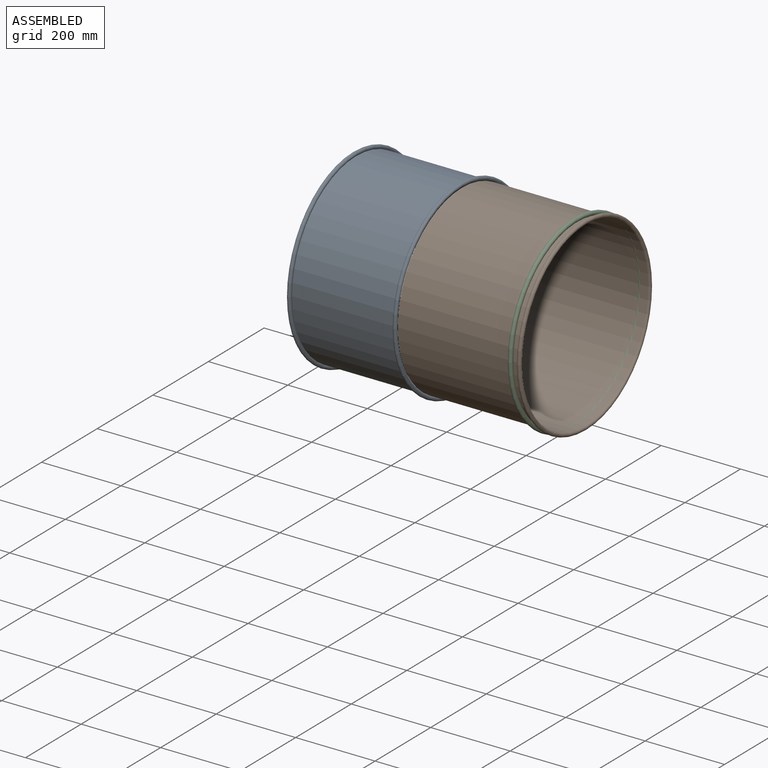
[diagram: assembled view]
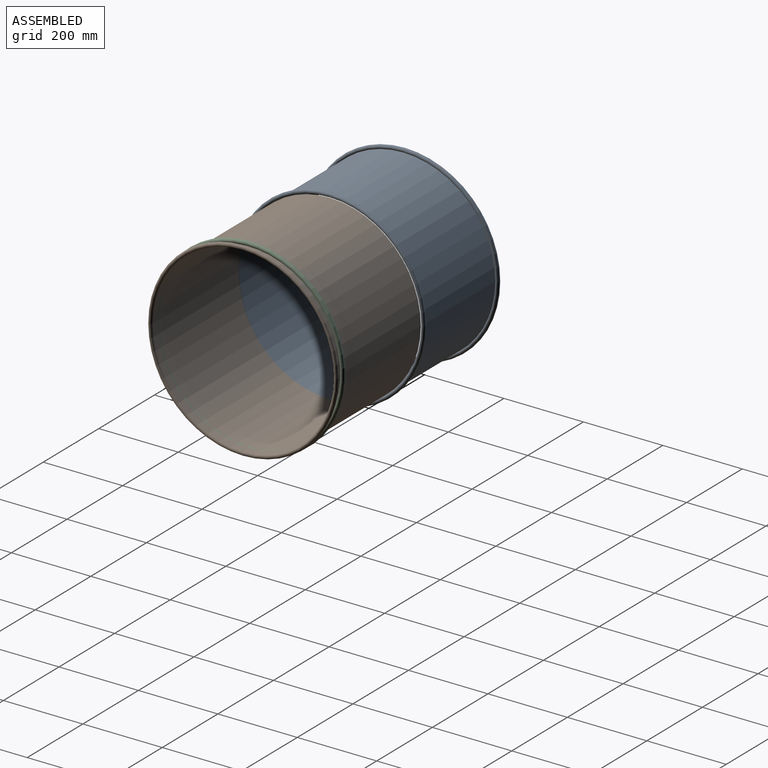
[diagram: assembled view, second angle]
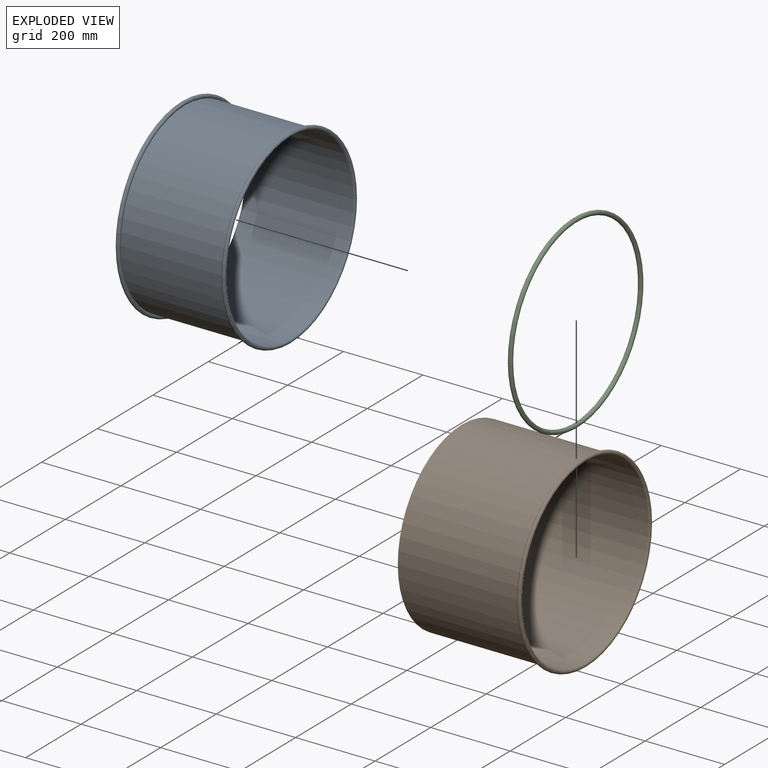
[diagram: exploded view]
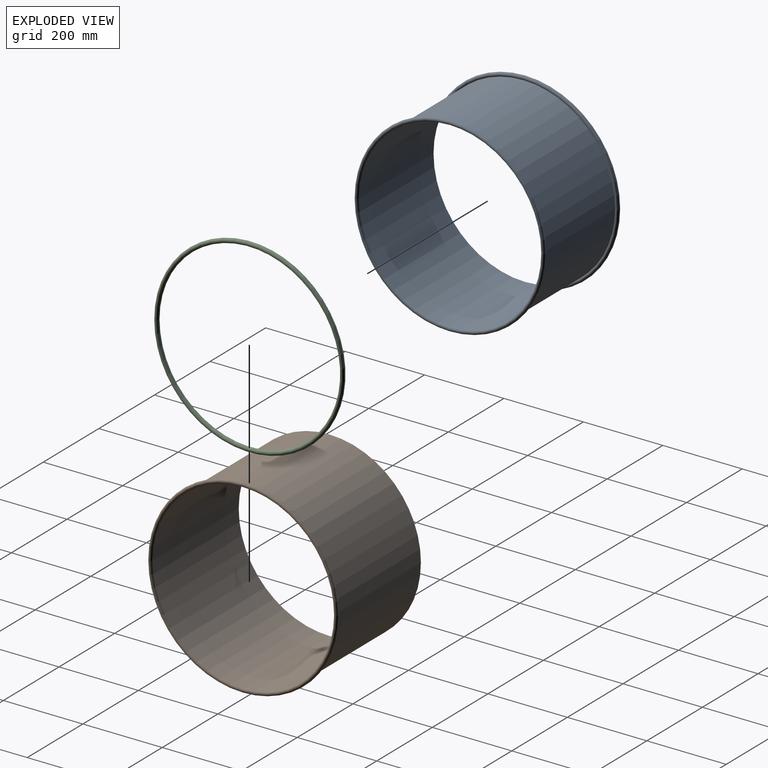
[diagram: exploded view, second angle]
ASSEMBLY  parts=3 mates=2
PART A: 8 faces, bbox 271.1x519.6x519.6 mm
  f0: torus R=234.95mm, axis (-1,0,0), area 35599.2mm2, adj f1,f7
  f1: cylinder r=231.14mm len=462.28mm, axis (-1,0,0), area 2826mm2, adj f0,f2
  f2: torus R=234.95mm, axis (-1,0,0), area 41806.6mm2, adj f1,f3
  f3: cylinder r=229.87mm len=459.74mm, axis (-1,0,0), area 384281.9mm2, adj f2,f4
  f4: torus R=234.95mm, axis (-1,0,0), area 41806.6mm2, adj f3,f5
  f5: cylinder r=231.14mm len=462.28mm, axis (-1,0,0), area 2826mm2, adj f4,f6
  f6: torus R=234.95mm, axis (-1,0,0), area 35599.2mm2, adj f5,f7
  f7: cylinder r=230.89mm len=461.77mm, axis (-1,0,0), area 385980.4mm2, adj f0,f6
PART B: 5 faces, bbox 314.3x517.4x517.4 mm
  f0: cylinder r=229.87mm len=459.74mm, axis (-1,0,0), area 442150.8mm2, adj f1,f3
  f1: plane 459.74x459.74mm, normal (-1,0,0), area 1464.2mm2, adj f0,f2
  f2: cylinder r=228.85mm len=457.71mm, axis (-1,0,0), area 444579.3mm2, adj f1,f3
  f3: torus R=233.93mm, axis (-1,0,0), area 42207.9mm2, adj f0,f2
  f4: torus R=233.93mm, axis (-1,0,0), area 37532.4mm2
PART C: 1 faces, bbox 518.7x518.7x11 mm
  f0: torus R=234.1mm, axis (0,0,-1), area 50830.4mm2
PLACE A t=(-276.23,0,0)mm
PLACE B rot(axis=(-1,0,0),0deg) t=(-6.99,0,0)mm
PLACE C rot(axis=(-0.58,-0.58,0.58),120deg) t=(284.9,0,0)mm
MATE slider B.f0 <-> A.f0  axis (1,0,0) through (279.4,0,0)mm
MATE fastened C.f0 <-> B.f0  axis (-1,0,0) through (279.4,0,0)mm
